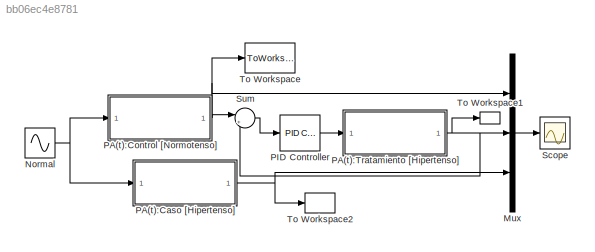
MODEL slx_bb06ec4e8781
KIND model
CONFIG AbsTol = auto
CONFIG EnableMultiTasking = off
CONFIG FixedStep = auto
CONFIG MaxStep = 1E-3
CONFIG MinStep = auto
CONFIG RelTol = 1e-3
CONFIG SampleTimeConstraint = Unconstrained
CONFIG SolverName = ode45
CONFIG StartTime = 0.0
CONFIG StopTime = 10
BLOCK [Mux] Mux
  DisplayOption = bar
  Inputs = 3
BLOCK [Sin] Normal
  Bias = 0.8
  Frequency = ((2*pi)*(95/60))
  SampleTime = 0
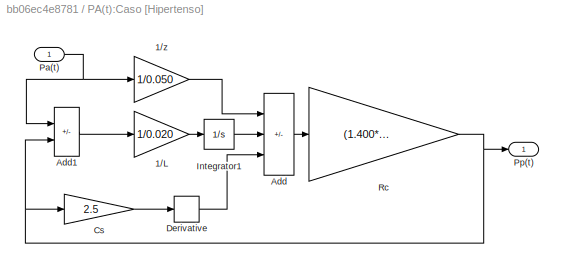
BLOCK [SubSystem] PA(t):Caso [Hipertenso]
BLOCK [Gain] PA(t):Caso [Hipertenso]/1//L
  Gain = 1/0.020
BLOCK [Gain] PA(t):Caso [Hipertenso]/1//z
  Gain = 1/0.050
BLOCK [Sum] PA(t):Caso [Hipertenso]/Add
  IconShape = rectangular
  Inputs = ++-
BLOCK [Sum] PA(t):Caso [Hipertenso]/Add1
  IconShape = rectangular
  Inputs = +-
BLOCK [Gain] PA(t):Caso [Hipertenso]/Cs
  Gain = 2.5
BLOCK [Derivative] PA(t):Caso [Hipertenso]/Derivative
BLOCK [Integrator] PA(t):Caso [Hipertenso]/Integrator1
BLOCK [Inport] PA(t):Caso [Hipertenso]/Pa(t)
BLOCK [Outport] PA(t):Caso [Hipertenso]/Pp(t)
BLOCK [Gain] PA(t):Caso [Hipertenso]/Rc
  Gain = (1.400*0.05)/(1.400+0.05)
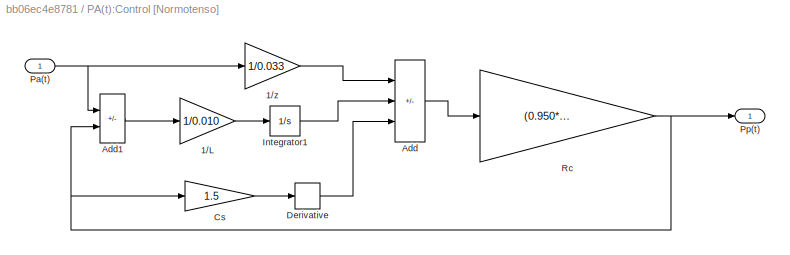
BLOCK [SubSystem] PA(t):Control [Normotenso]
BLOCK [Gain] PA(t):Control [Normotenso]/1//L
  Gain = 1/0.010
BLOCK [Gain] PA(t):Control [Normotenso]/1//z
  Gain = 1/0.033
BLOCK [Sum] PA(t):Control [Normotenso]/Add
  IconShape = rectangular
  Inputs = ++-
BLOCK [Sum] PA(t):Control [Normotenso]/Add1
  IconShape = rectangular
  Inputs = +-
BLOCK [Gain] PA(t):Control [Normotenso]/Cs
  Gain = 1.5
BLOCK [Derivative] PA(t):Control [Normotenso]/Derivative
BLOCK [Integrator] PA(t):Control [Normotenso]/Integrator1
BLOCK [Inport] PA(t):Control [Normotenso]/Pa(t)
BLOCK [Outport] PA(t):Control [Normotenso]/Pp(t)
BLOCK [Gain] PA(t):Control [Normotenso]/Rc
  Gain = (0.950*0.033)/(0.950+0.033)
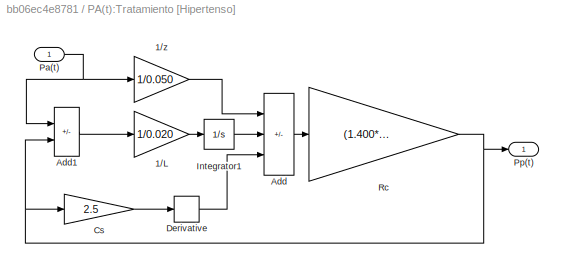
BLOCK [SubSystem] PA(t):Tratamiento [Hipertenso]
BLOCK [Gain] PA(t):Tratamiento [Hipertenso]/1//L
  Gain = 1/0.020
BLOCK [Gain] PA(t):Tratamiento [Hipertenso]/1//z
  Gain = 1/0.050
BLOCK [Sum] PA(t):Tratamiento [Hipertenso]/Add
  IconShape = rectangular
  Inputs = ++-
BLOCK [Sum] PA(t):Tratamiento [Hipertenso]/Add1
  IconShape = rectangular
  Inputs = +-
BLOCK [Gain] PA(t):Tratamiento [Hipertenso]/Cs
  Gain = 2.5
BLOCK [Derivative] PA(t):Tratamiento [Hipertenso]/Derivative
BLOCK [Integrator] PA(t):Tratamiento [Hipertenso]/Integrator1
BLOCK [Inport] PA(t):Tratamiento [Hipertenso]/Pa(t)
BLOCK [Outport] PA(t):Tratamiento [Hipertenso]/Pp(t)
BLOCK [Gain] PA(t):Tratamiento [Hipertenso]/Rc
  Gain = (1.400*0.05)/(1.400+0.05)
BLOCK [Reference] PID Controller  REF=slpidlib/PID Controller
  LibrarySourceBlock = simulink/Continuous/PID Controller
  SourceBlock = slpidlib/PID Controller
  SourceType = PID 1dof
BLOCK [Scope] Scope
  Floating = off
  NumInputPorts = 1
  ScopeSpecificationString = Simulink.scopes.TimeScopeBlockCfg('CurrentConfiguration', extmgr.ConfigurationSet(extmgr.Configuration('Core','General UI',true,'FigureColor',[1 1 1]),extmgr.Configuration('Core','Source UI',true),extmgr.Configuration('Sources','WiredSimulink',true),extmgr.Configuration('Visuals','Time Domain',true,'SerializedDisplays',{struct('MinYLimReal','-0.65201','MaxYLimReal','2.0767','YLabelReal','','MinYLi...<+1778ch>
BLOCK [Sum] Sum
  Inputs = |+-
BLOCK [ToWorkspace] To Workspace
  FixptAsFi = on
  MaxDataPoints = inf
  SampleTime = -1
  VariableName = Ppy
BLOCK [ToWorkspace] To Workspace1
  FixptAsFi = on
  MaxDataPoints = inf
  SampleTime = -1
  VariableName = Ppz
BLOCK [ToWorkspace] To Workspace2
  FixptAsFi = on
  MaxDataPoints = inf
  SampleTime = -1
  VariableName = Ppx
LINE Mux:1 -> Scope:1
NET Normal:1 -> PA(t):Caso [Hipertenso]:1, PA(t):Control [Normotenso]:1
LINE PA(t):Caso [Hipertenso]/1//L:1 -> PA(t):Caso [Hipertenso]/Integrator1:1
LINE PA(t):Caso [Hipertenso]/1//z:1 -> PA(t):Caso [Hipertenso]/Add:1
LINE PA(t):Caso [Hipertenso]/Add1:1 -> PA(t):Caso [Hipertenso]/1//L:1
LINE PA(t):Caso [Hipertenso]/Add:1 -> PA(t):Caso [Hipertenso]/Rc:1
LINE PA(t):Caso [Hipertenso]/Cs:1 -> PA(t):Caso [Hipertenso]/Derivative:1
LINE PA(t):Caso [Hipertenso]/Derivative:1 -> PA(t):Caso [Hipertenso]/Add:3
LINE PA(t):Caso [Hipertenso]/Integrator1:1 -> PA(t):Caso [Hipertenso]/Add:2
NET PA(t):Caso [Hipertenso]/Pa(t):1 -> PA(t):Caso [Hipertenso]/1//z:1, PA(t):Caso [Hipertenso]/Add1:1
NET PA(t):Caso [Hipertenso]/Rc:1 -> PA(t):Caso [Hipertenso]/Add1:2, PA(t):Caso [Hipertenso]/Cs:1, PA(t):Caso [Hipertenso]/Pp(t):1
NET PA(t):Caso [Hipertenso]:1 -> Mux:3, To Workspace2:1
LINE PA(t):Control [Normotenso]/1//L:1 -> PA(t):Control [Normotenso]/Integrator1:1
LINE PA(t):Control [Normotenso]/1//z:1 -> PA(t):Control [Normotenso]/Add:1
LINE PA(t):Control [Normotenso]/Add1:1 -> PA(t):Control [Normotenso]/1//L:1
LINE PA(t):Control [Normotenso]/Add:1 -> PA(t):Control [Normotenso]/Rc:1
LINE PA(t):Control [Normotenso]/Cs:1 -> PA(t):Control [Normotenso]/Derivative:1
LINE PA(t):Control [Normotenso]/Derivative:1 -> PA(t):Control [Normotenso]/Add:3
LINE PA(t):Control [Normotenso]/Integrator1:1 -> PA(t):Control [Normotenso]/Add:2
NET PA(t):Control [Normotenso]/Pa(t):1 -> PA(t):Control [Normotenso]/1//z:1, PA(t):Control [Normotenso]/Add1:1
NET PA(t):Control [Normotenso]/Rc:1 -> PA(t):Control [Normotenso]/Add1:2, PA(t):Control [Normotenso]/Cs:1, PA(t):Control [Normotenso]/Pp(t):1
NET PA(t):Control [Normotenso]:1 -> Mux:1, Sum:1, To Workspace:1
LINE PA(t):Tratamiento [Hipertenso]/1//L:1 -> PA(t):Tratamiento [Hipertenso]/Integrator1:1
LINE PA(t):Tratamiento [Hipertenso]/1//z:1 -> PA(t):Tratamiento [Hipertenso]/Add:1
LINE PA(t):Tratamiento [Hipertenso]/Add1:1 -> PA(t):Tratamiento [Hipertenso]/1//L:1
LINE PA(t):Tratamiento [Hipertenso]/Add:1 -> PA(t):Tratamiento [Hipertenso]/Rc:1
LINE PA(t):Tratamiento [Hipertenso]/Cs:1 -> PA(t):Tratamiento [Hipertenso]/Derivative:1
LINE PA(t):Tratamiento [Hipertenso]/Derivative:1 -> PA(t):Tratamiento [Hipertenso]/Add:3
LINE PA(t):Tratamiento [Hipertenso]/Integrator1:1 -> PA(t):Tratamiento [Hipertenso]/Add:2
NET PA(t):Tratamiento [Hipertenso]/Pa(t):1 -> PA(t):Tratamiento [Hipertenso]/1//z:1, PA(t):Tratamiento [Hipertenso]/Add1:1
NET PA(t):Tratamiento [Hipertenso]/Rc:1 -> PA(t):Tratamiento [Hipertenso]/Add1:2, PA(t):Tratamiento [Hipertenso]/Cs:1, PA(t):Tratamiento [Hipertenso]/Pp(t):1
NET PA(t):Tratamiento [Hipertenso]:1 -> Mux:2, Sum:2, To Workspace1:1
LINE PID Controller:1 -> PA(t):Tratamiento [Hipertenso]:1
LINE Sum:1 -> PID Controller:1
note: NET lines group one-source signal fan-out (src -> all destinations, sorted); 1:1 wires keep LINE
